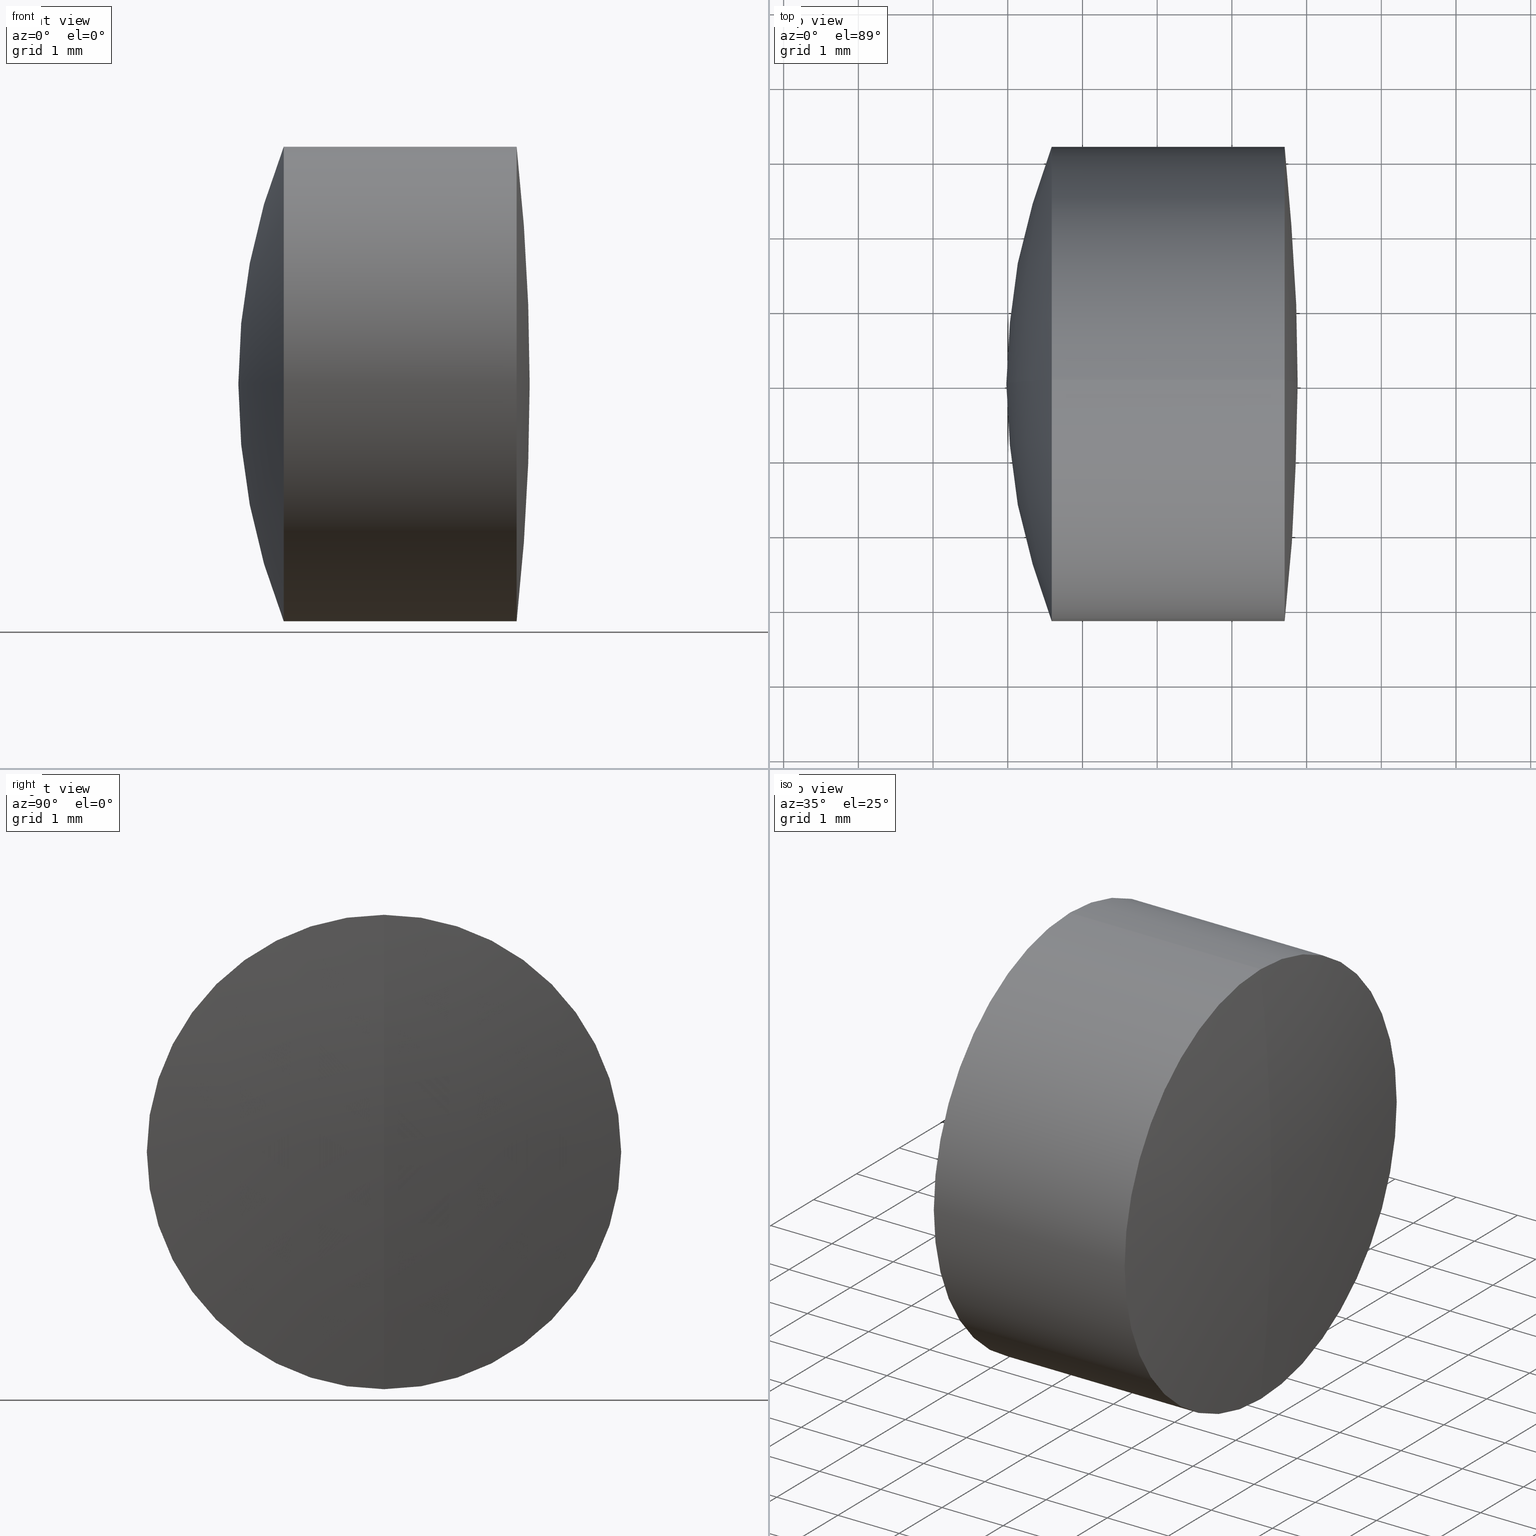
[diagram: canonical four-view strip — front | top / right | iso, engineering-drawing reading convention]
A machine part, canonical four-view strip (front | top / right | iso — engineering-drawing reading convention). The complete STEP part file that produces these views, byte-faithful:
ISO-10303-21;
HEADER;
FILE_DESCRIPTION (( 'STEP AP214' ),
    '1' );
FILE_NAME ('145104.STEP',
    '2019-05-28T08:43:44',
    ( 'user' ),
    ( '΢���й�' ),
    'SwSTEP 2.0',
    'SolidWorks 2016',
    '' );
FILE_SCHEMA (( 'AUTOMOTIVE_DESIGN' ));
ENDSEC;

DATA;
#1 = ORIENTED_EDGE ( 'NONE', *, *, #331, .F. ) ;
#2 = DIRECTION ( 'NONE',  ( 0.0000000000000000000, 1.000000000000000000, 0.0000000000000000000 ) ) ;
#3 =( GEOMETRIC_REPRESENTATION_CONTEXT ( 3 ) GLOBAL_UNCERTAINTY_ASSIGNED_CONTEXT ( ( #105 ) ) GLOBAL_UNIT_ASSIGNED_CONTEXT ( ( #121, #212, #255 ) ) REPRESENTATION_CONTEXT ( 'NONE', 'WORKASPACE' ) );
#4 = FACE_OUTER_BOUND ( 'NONE', #145, .T. ) ;
#5 = MECHANICAL_DESIGN_GEOMETRIC_PRESENTATION_REPRESENTATION (  '', ( #228 ), #266 ) ;
#6 = UNCERTAINTY_MEASURE_WITH_UNIT (LENGTH_MEASURE( 1.000000000000000100E-005 ), #227, 'distance_accuracy_value', 'NONE');
#7 = ADVANCED_FACE ( 'NONE', ( #214 ), #222, .T. ) ;
#8 = STYLED_ITEM ( 'NONE', ( #20 ), #69 ) ;
#9 = COLOUR_RGB ( '',1.000000000000000000, 1.000000000000000000, 1.000000000000000000 ) ;
#10 = SPHERICAL_SURFACE ( 'NONE', #163, 6.700000000000275500 ) ;
#11 = EDGE_CURVE ( 'NONE', #137, #195, #148, .T. ) ;
#12 =( NAMED_UNIT ( * ) PLANE_ANGLE_UNIT ( ) SI_UNIT ( $, .RADIAN. ) );
#13 = FILL_AREA_STYLE ('',( #152 ) ) ;
#14 = DIRECTION ( 'NONE',  ( -1.000000000000000000, -0.0000000000000000000, -0.0000000000000000000 ) ) ;
#15 = CARTESIAN_POINT ( 'NONE',  ( -0.5519199926577972300, 0.0000000000000000000, 0.0000000000000000000 ) ) ;
#16 = DIRECTION ( 'NONE',  ( -0.0000000000000000000, 1.000000000000000000, 1.224646799147353200E-016 ) ) ;
#17 = DIRECTION ( 'NONE',  ( -1.000000000000000000, -0.0000000000000000000, -0.0000000000000000000 ) ) ;
#18 = DIRECTION ( 'NONE',  ( 0.0000000000000000000, 1.000000000000000000, 0.0000000000000000000 ) ) ;
#19 = FACE_OUTER_BOUND ( 'NONE', #108, .T. ) ;
#20 = PRESENTATION_STYLE_ASSIGNMENT (( #251 ) ) ;
#21 = CARTESIAN_POINT ( 'NONE',  ( 261.6806597883319800, 3.888253587292846100E-016, -3.174999999999999800 ) ) ;
#22 = CARTESIAN_POINT ( 'NONE',  ( 124.5233095260452400, 0.0000000000000000000, 0.0000000000000000000 ) ) ;
#23 = DIRECTION ( 'NONE',  ( 0.0000000000000000000, 0.0000000000000000000, 1.000000000000000000 ) ) ;
#24 = CARTESIAN_POINT ( 'NONE',  ( 234.8807127546714100, 0.0000000000000000000, 0.0000000000000000000 ) ) ;
#25 = AXIS2_PLACEMENT_3D ( 'NONE', #310, #99, #23 ) ;
#26 = DIRECTION ( 'NONE',  ( -1.000000000000000000, -0.0000000000000000000, -0.0000000000000000000 ) ) ;
#27 = PRESENTATION_LAYER_ASSIGNMENT (  '', '', ( #8 ) ) ;
#28 = EDGE_LOOP ( 'NONE', ( #117, #61, #197, #187 ) ) ;
#29 = AXIS2_PLACEMENT_3D ( 'NONE', #344, #131, #314 ) ;
#30 = LINE ( 'NONE', #165, #113 ) ;
#31 = ADVANCED_FACE ( 'NONE', ( #4 ), #292, .T. ) ;
#32 = PRESENTATION_LAYER_ASSIGNMENT (  '', '', ( #228 ) ) ;
#33 = ORIENTED_EDGE ( 'NONE', *, *, #250, .T. ) ;
#34 = VERTEX_POINT ( 'NONE', #306 ) ;
#35 =( NAMED_UNIT ( * ) PLANE_ANGLE_UNIT ( ) SI_UNIT ( $, .RADIAN. ) );
#36 = FILL_AREA_STYLE_COLOUR ( '', #112 ) ;
#37 = DIRECTION ( 'NONE',  ( 0.0000000000000000000, -1.000000000000000000, 0.0000000000000000000 ) ) ;
#38 = DIRECTION ( 'NONE',  ( -0.0000000000000000000, -1.000000000000000000, -0.0000000000000000000 ) ) ;
#39 = EDGE_CURVE ( 'NONE', #120, #286, #77, .T. ) ;
#40 = MANIFOLD_SOLID_BREP ( '��ת3', #188 ) ;
#41 = SHAPE_DEFINITION_REPRESENTATION ( #340, #69 ) ;
#42 = DIRECTION ( 'NONE',  ( -0.0000000000000000000, 1.000000000000000000, 1.224646799147353200E-016 ) ) ;
#43 = ORIENTED_EDGE ( 'NONE', *, *, #11, .F. ) ;
#44 = MECHANICAL_DESIGN_GEOMETRIC_PRESENTATION_REPRESENTATION (  '', ( #8 ), #63 ) ;
#45 = DIRECTION ( 'NONE',  ( 0.0000000000000000000, 1.224646799147353200E-016, -1.000000000000000000 ) ) ;
#46 = VERTEX_POINT ( 'NONE', #253 ) ;
#47 = ORIENTED_EDGE ( 'NONE', *, *, #250, .F. ) ;
#48 = DIRECTION ( 'NONE',  ( -1.000000000000000000, -0.0000000000000000000, -0.0000000000000000000 ) ) ;
#49 = STYLED_ITEM ( 'NONE', ( #155 ), #40 ) ;
#50 = FACE_OUTER_BOUND ( 'NONE', #281, .T. ) ;
#51 = CARTESIAN_POINT ( 'NONE',  ( -0.5519199926577972300, 0.0000000000000000000, 0.0000000000000000000 ) ) ;
#52 = ORIENTED_EDGE ( 'NONE', *, *, #207, .T. ) ;
#53 = FACE_OUTER_BOUND ( 'NONE', #265, .T. ) ;
#54 = ORIENTED_EDGE ( 'NONE', *, *, #245, .T. ) ;
#55 = PRESENTATION_LAYER_ASSIGNMENT (  '', '', ( #49 ) ) ;
#56 = ORIENTED_EDGE ( 'NONE', *, *, #183, .T. ) ;
#57 = AXIS2_PLACEMENT_3D ( 'NONE', #110, #86, #319 ) ;
#58 = ORIENTED_EDGE ( 'NONE', *, *, #225, .F. ) ;
#59 = FACE_OUTER_BOUND ( 'NONE', #204, .T. ) ;
#60 = ADVANCED_FACE ( 'NONE', ( #19 ), #328, .T. ) ;
#61 = ORIENTED_EDGE ( 'NONE', *, *, #11, .T. ) ;
#62 = CIRCLE ( 'NONE', #29, 3.174999999999999800 ) ;
#63 =( GEOMETRIC_REPRESENTATION_CONTEXT ( 3 ) GLOBAL_UNCERTAINTY_ASSIGNED_CONTEXT ( ( #6 ) ) GLOBAL_UNIT_ASSIGNED_CONTEXT ( ( #227, #35, #196 ) ) REPRESENTATION_CONTEXT ( 'NONE', 'WORKASPACE' ) );
#64 = VERTEX_POINT ( 'NONE', #124 ) ;
#65 = EDGE_CURVE ( 'NONE', #342, #323, #263, .T. ) ;
#66 = DIRECTION ( 'NONE',  ( -0.0000000000000000000, 1.000000000000000000, 1.224646799147353200E-016 ) ) ;
#67 = CARTESIAN_POINT ( 'NONE',  ( 261.6806597883319800, 0.0000000000000000000, 0.0000000000000000000 ) ) ;
#68 = DIRECTION ( 'NONE',  ( -1.000000000000000000, -0.0000000000000000000, -0.0000000000000000000 ) ) ;
#69 = ADVANCED_BREP_SHAPE_REPRESENTATION ( '145104', ( #93, #40, #115 ), #289 ) ;
#70 = CARTESIAN_POINT ( 'NONE',  ( 268.5807127546710800, 0.0000000000000000000, 7.729108157225100800E-017 ) ) ;
#71 = CIRCLE ( 'NONE', #273, 6.700000000000275500 ) ;
#72 = CARTESIAN_POINT ( 'NONE',  ( 268.5807127546710800, 0.0000000000000000000, 7.729108157225100800E-017 ) ) ;
#73 = AXIS2_PLACEMENT_3D ( 'NONE', #268, #48, #240 ) ;
#74 = EDGE_LOOP ( 'NONE', ( #318, #161, #343 ) ) ;
#75 = DIRECTION ( 'NONE',  ( 0.0000000000000000000, 1.000000000000000000, 0.0000000000000000000 ) ) ;
#76 = CARTESIAN_POINT ( 'NONE',  ( -0.5519199926577972300, 0.0000000000000000000, 3.175000000000000700 ) ) ;
#77 = CIRCLE ( 'NONE', #201, 3.175000000000000700 ) ;
#78 = ORIENTED_EDGE ( 'NONE', *, *, #260, .F. ) ;
#79 = DIRECTION ( 'NONE',  ( -1.000000000000000000, -0.0000000000000000000, -0.0000000000000000000 ) ) ;
#80 = DIRECTION ( 'NONE',  ( -1.000000000000000000, -0.0000000000000000000, -0.0000000000000000000 ) ) ;
#81 = DIRECTION ( 'NONE',  ( 0.0000000000000000000, -1.000000000000000000, 0.0000000000000000000 ) ) ;
#82 = AXIS2_PLACEMENT_3D ( 'NONE', #235, #16, #269 ) ;
#83 = DIRECTION ( 'NONE',  ( 0.0000000000000000000, 0.0000000000000000000, 1.000000000000000000 ) ) ;
#84 = CIRCLE ( 'NONE', #82, 6.700000000000274600 ) ;
#85 = SURFACE_STYLE_FILL_AREA ( #13 ) ;
#86 = DIRECTION ( 'NONE',  ( -1.000000000000000000, -0.0000000000000000000, -0.0000000000000000000 ) ) ;
#87 = EDGE_LOOP ( 'NONE', ( #339, #329, #313 ) ) ;
#88 = AXIS2_PLACEMENT_3D ( 'NONE', #138, #2, #232 ) ;
#89 = ADVANCED_FACE ( 'NONE', ( #53 ), #194, .T. ) ;
#90 = SURFACE_STYLE_FILL_AREA ( #284 ) ;
#91 = SURFACE_SIDE_STYLE ('',( #90 ) ) ;
#92 = AXIS2_PLACEMENT_3D ( 'NONE', #158, #215, #45 ) ;
#93 = MANIFOLD_SOLID_BREP ( '��ת1', #157 ) ;
#94 = CARTESIAN_POINT ( 'NONE',  ( 255.7807127546711300, 0.0000000000000000000, 0.0000000000000000000 ) ) ;
#95 = FACE_OUTER_BOUND ( 'NONE', #226, .T. ) ;
#96 = DIRECTION ( 'NONE',  ( 0.0000000000000000000, 0.0000000000000000000, 1.000000000000000000 ) ) ;
#97 = AXIS2_PLACEMENT_3D ( 'NONE', #94, #285, #338 ) ;
#98 = CARTESIAN_POINT ( 'NONE',  ( 255.7807127546711300, 0.0000000000000000000, 0.0000000000000000000 ) ) ;
#99 = DIRECTION ( 'NONE',  ( 0.0000000000000000000, 1.000000000000000000, 0.0000000000000000000 ) ) ;
#100 = DIRECTION ( 'NONE',  ( 0.0000000000000000000, 0.0000000000000000000, 1.000000000000000000 ) ) ;
#101 = EDGE_CURVE ( 'NONE', #195, #46, #127, .T. ) ;
#102 = CARTESIAN_POINT ( 'NONE',  ( 261.6806597883319800, 0.0000000000000000000, 0.0000000000000000000 ) ) ;
#103 = CYLINDRICAL_SURFACE ( 'NONE', #278, 3.174999999999999800 ) ;
#104 = DIRECTION ( 'NONE',  ( 0.0000000000000000000, 0.0000000000000000000, -1.000000000000000000 ) ) ;
#105 = UNCERTAINTY_MEASURE_WITH_UNIT (LENGTH_MEASURE( 1.000000000000000100E-005 ), #121, 'distance_accuracy_value', 'NONE');
#106 = EDGE_CURVE ( 'NONE', #46, #64, #62, .T. ) ;
#107 = DIRECTION ( 'NONE',  ( 0.0000000000000000000, -1.000000000000000000, 0.0000000000000000000 ) ) ;
#108 = EDGE_LOOP ( 'NONE', ( #312, #267, #43 ) ) ;
#109 = ORIENTED_EDGE ( 'NONE', *, *, #39, .T. ) ;
#110 = CARTESIAN_POINT ( 'NONE',  ( 263.7063849064184100, 0.0000000000000000000, 0.0000000000000000000 ) ) ;
#111 = ADVANCED_FACE ( 'NONE', ( #95 ), #103, .T. ) ;
#112 = COLOUR_RGB ( '',1.000000000000000000, 1.000000000000000000, 1.000000000000000000 ) ;
#113 = VECTOR ( 'NONE', #26, 1000.000000000000000 ) ;
#114 = VERTEX_POINT ( 'NONE', #294 ) ;
#115 = AXIS2_PLACEMENT_3D ( 'NONE', #171, #330, #149 ) ;
#116 = APPLICATION_CONTEXT ( 'automotive_design' ) ;
#117 = ORIENTED_EDGE ( 'NONE', *, *, #322, .F. ) ;
#118 = AXIS2_PLACEMENT_3D ( 'NONE', #102, #126, #346 ) ;
#119 = APPLICATION_CONTEXT ( 'automotive_design' ) ;
#120 = VERTEX_POINT ( 'NONE', #239 ) ;
#121 =( LENGTH_UNIT ( ) NAMED_UNIT ( * ) SI_UNIT ( .MILLI., .METRE. ) );
#122 = CIRCLE ( 'NONE', #236, 8.600000000000001400 ) ;
#123 = AXIS2_PLACEMENT_3D ( 'NONE', #216, #159, #264 ) ;
#124 = CARTESIAN_POINT ( 'NONE',  ( 260.5882553728641800, 0.0000000000000000000, -3.174999999999998500 ) ) ;
#125 = ORIENTED_EDGE ( 'NONE', *, *, #154, .T. ) ;
#126 = DIRECTION ( 'NONE',  ( -1.000000000000000000, -0.0000000000000000000, -0.0000000000000000000 ) ) ;
#127 = LINE ( 'NONE', #218, #166 ) ;
#128 = CARTESIAN_POINT ( 'NONE',  ( 261.6806597883319800, 0.0000000000000000000, 0.0000000000000000000 ) ) ;
#129 = ORIENTED_EDGE ( 'NONE', *, *, #39, .F. ) ;
#130 = CARTESIAN_POINT ( 'NONE',  ( 124.5233095260452400, 0.0000000000000000000, 0.0000000000000000000 ) ) ;
#131 = DIRECTION ( 'NONE',  ( -1.000000000000000000, -0.0000000000000000000, -0.0000000000000000000 ) ) ;
#132 = ORIENTED_EDGE ( 'NONE', *, *, #65, .F. ) ;
#133 =( NAMED_UNIT ( * ) SI_UNIT ( $, .STERADIAN. ) SOLID_ANGLE_UNIT ( ) );
#134 = CARTESIAN_POINT ( 'NONE',  ( 255.7807127546711300, 0.0000000000000000000, 0.0000000000000000000 ) ) ;
#135 = VECTOR ( 'NONE', #178, 1000.000000000000000 ) ;
#136 = CARTESIAN_POINT ( 'NONE',  ( 263.8807127546714400, 0.0000000000000000000, 1.775737858763664800E-015 ) ) ;
#137 = VERTEX_POINT ( 'NONE', #21 ) ;
#138 = CARTESIAN_POINT ( 'NONE',  ( 234.8807127546714100, 0.0000000000000000000, 0.0000000000000000000 ) ) ;
#139 = PRESENTATION_STYLE_ASSIGNMENT (( #316 ) ) ;
#140 = PRODUCT_DEFINITION ( 'δ֪', '', #156, #185 ) ;
#141 = ORIENTED_EDGE ( 'NONE', *, *, #101, .F. ) ;
#142 = ORIENTED_EDGE ( 'NONE', *, *, #106, .F. ) ;
#143 = CIRCLE ( 'NONE', #146, 3.174999999999999800 ) ;
#144 = ADVANCED_FACE ( 'NONE', ( #308 ), #274, .T. ) ;
#145 = EDGE_LOOP ( 'NONE', ( #277, #125, #193 ) ) ;
#146 = AXIS2_PLACEMENT_3D ( 'NONE', #128, #290, #100 ) ;
#147 = CIRCLE ( 'NONE', #118, 3.175000000000000700 ) ;
#148 = CIRCLE ( 'NONE', #271, 3.174999999999999800 ) ;
#149 = DIRECTION ( 'NONE',  ( 1.000000000000000000, 0.0000000000000000000, 0.0000000000000000000 ) ) ;
#150 = APPLICATION_PROTOCOL_DEFINITION ( 'draft international standard', 'automotive_design', 1998, #119 ) ;
#151 = AXIS2_PLACEMENT_3D ( 'NONE', #130, #297, #83 ) ;
#152 = FILL_AREA_STYLE_COLOUR ( '', #9 ) ;
#153 = DIRECTION ( 'NONE',  ( -1.000000000000000000, -0.0000000000000000000, -0.0000000000000000000 ) ) ;
#154 = EDGE_CURVE ( 'NONE', #46, #217, #337, .T. ) ;
#155 = PRESENTATION_STYLE_ASSIGNMENT (( #332 ) ) ;
#156 = PRODUCT_DEFINITION_FORMATION_WITH_SPECIFIED_SOURCE ( '�κ�', '', #213, .NOT_KNOWN. ) ;
#157 = CLOSED_SHELL ( 'NONE', ( #89, #111, #31, #144, #191, #60 ) ) ;
#158 = CARTESIAN_POINT ( 'NONE',  ( 268.5807127546710800, 0.0000000000000000000, 7.729108157225100800E-017 ) ) ;
#159 = DIRECTION ( 'NONE',  ( -0.0000000000000000000, -1.000000000000000000, -0.0000000000000000000 ) ) ;
#160 =( LENGTH_UNIT ( ) NAMED_UNIT ( * ) SI_UNIT ( .MILLI., .METRE. ) );
#161 = ORIENTED_EDGE ( 'NONE', *, *, #106, .T. ) ;
#162 = DIRECTION ( 'NONE',  ( 0.0000000000000000000, 0.0000000000000000000, 1.000000000000000000 ) ) ;
#163 = AXIS2_PLACEMENT_3D ( 'NONE', #134, #287, #162 ) ;
#164 = EDGE_CURVE ( 'NONE', #261, #323, #241, .T. ) ;
#165 = CARTESIAN_POINT ( 'NONE',  ( -0.5519199926577972300, 3.888253587292847100E-016, -3.175000000000000700 ) ) ;
#166 = VECTOR ( 'NONE', #80, 1000.000000000000000 ) ;
#167 = UNCERTAINTY_MEASURE_WITH_UNIT (LENGTH_MEASURE( 1.000000000000000100E-005 ), #160, 'distance_accuracy_value', 'NONE');
#168 = EDGE_CURVE ( 'NONE', #34, #195, #223, .T. ) ;
#169 = FACE_OUTER_BOUND ( 'NONE', #272, .T. ) ;
#170 = PRODUCT_RELATED_PRODUCT_CATEGORY ( 'part', '', ( #213 ) ) ;
#171 = CARTESIAN_POINT ( 'NONE',  ( 0.0000000000000000000, 0.0000000000000000000, 0.0000000000000000000 ) ) ;
#172 =( NAMED_UNIT ( * ) SI_UNIT ( $, .STERADIAN. ) SOLID_ANGLE_UNIT ( ) );
#173 = SURFACE_SIDE_STYLE ('',( #85 ) ) ;
#174 = DIRECTION ( 'NONE',  ( 0.0000000000000000000, 0.0000000000000000000, 1.000000000000000000 ) ) ;
#175 = CARTESIAN_POINT ( 'NONE',  ( 255.7807127546711300, 0.0000000000000000000, 0.0000000000000000000 ) ) ;
#176 = DIRECTION ( 'NONE',  ( 0.0000000000000000000, 0.0000000000000000000, 1.000000000000000000 ) ) ;
#177 = AXIS2_PLACEMENT_3D ( 'NONE', #237, #42, #211 ) ;
#178 = DIRECTION ( 'NONE',  ( -1.000000000000000000, -0.0000000000000000000, -0.0000000000000000000 ) ) ;
#179 = ORIENTED_EDGE ( 'NONE', *, *, #65, .T. ) ;
#180 = DIRECTION ( 'NONE',  ( 0.0000000000000000000, 0.0000000000000000000, 1.000000000000000000 ) ) ;
#181 = SURFACE_SIDE_STYLE ('',( #210 ) ) ;
#182 = DIRECTION ( 'NONE',  ( 0.0000000000000000000, 0.0000000000000000000, 1.000000000000000000 ) ) ;
#183 = EDGE_CURVE ( 'NONE', #323, #342, #291, .T. ) ;
#184 = VECTOR ( 'NONE', #153, 1000.000000000000000 ) ;
#185 = PRODUCT_DEFINITION_CONTEXT ( 'detailed design', #116, 'design' ) ;
#186 = EDGE_LOOP ( 'NONE', ( #1, #243, #109 ) ) ;
#187 = ORIENTED_EDGE ( 'NONE', *, *, #296, .F. ) ;
#188 = CLOSED_SHELL ( 'NONE', ( #7, #224, #301, #246, #325, #280 ) ) ;
#189 = ORIENTED_EDGE ( 'NONE', *, *, #168, .F. ) ;
#190 = SPHERICAL_SURFACE ( 'NONE', #248, 6.700000000000275500 ) ;
#191 = ADVANCED_FACE ( 'NONE', ( #257 ), #303, .T. ) ;
#192 = AXIS2_PLACEMENT_3D ( 'NONE', #206, #17, #176 ) ;
#193 = ORIENTED_EDGE ( 'NONE', *, *, #304, .F. ) ;
#194 = SPHERICAL_SURFACE ( 'NONE', #25, 6.700000000000274600 ) ;
#195 = VERTEX_POINT ( 'NONE', #209 ) ;
#196 =( NAMED_UNIT ( * ) SI_UNIT ( $, .STERADIAN. ) SOLID_ANGLE_UNIT ( ) );
#197 = ORIENTED_EDGE ( 'NONE', *, *, #101, .T. ) ;
#198 =( LENGTH_UNIT ( ) NAMED_UNIT ( * ) SI_UNIT ( .MILLI., .METRE. ) );
#199 = DIRECTION ( 'NONE',  ( 0.0000000000000000000, 0.0000000000000000000, 1.000000000000000000 ) ) ;
#200 = DIRECTION ( 'NONE',  ( 0.0000000000000000000, 0.0000000000000000000, 1.000000000000000000 ) ) ;
#201 = AXIS2_PLACEMENT_3D ( 'NONE', #67, #230, #199 ) ;
#202 = CARTESIAN_POINT ( 'NONE',  ( 261.6806597883319800, 0.0000000000000000000, 0.0000000000000000000 ) ) ;
#203 = CARTESIAN_POINT ( 'NONE',  ( 124.5233095260452400, 3.888253587292846100E-016, -3.174999999999999800 ) ) ;
#204 = EDGE_LOOP ( 'NONE', ( #327, #276, #132 ) ) ;
#205 = LINE ( 'NONE', #76, #135 ) ;
#206 = CARTESIAN_POINT ( 'NONE',  ( 260.5882553728641800, 0.0000000000000000000, 0.0000000000000000000 ) ) ;
#207 = EDGE_CURVE ( 'NONE', #342, #286, #30, .T. ) ;
#208 = ORIENTED_EDGE ( 'NONE', *, *, #322, .T. ) ;
#209 = CARTESIAN_POINT ( 'NONE',  ( 261.6806597883319800, 0.0000000000000000000, 3.174999999999999800 ) ) ;
#210 = SURFACE_STYLE_FILL_AREA ( #345 ) ;
#211 = DIRECTION ( 'NONE',  ( 0.0000000000000000000, -1.224646799147353200E-016, 1.000000000000000000 ) ) ;
#212 =( NAMED_UNIT ( * ) PLANE_ANGLE_UNIT ( ) SI_UNIT ( $, .RADIAN. ) );
#213 = PRODUCT ( '145104', '145104', '', ( #305 ) ) ;
#214 = FACE_OUTER_BOUND ( 'NONE', #321, .T. ) ;
#215 = DIRECTION ( 'NONE',  ( 0.0000000000000000000, -1.000000000000000000, -1.224646799147353200E-016 ) ) ;
#216 = CARTESIAN_POINT ( 'NONE',  ( 268.5807127546710800, 0.0000000000000000000, 7.729108157225100800E-017 ) ) ;
#217 = VERTEX_POINT ( 'NONE', #242 ) ;
#218 = CARTESIAN_POINT ( 'NONE',  ( 124.5233095260452400, 0.0000000000000000000, 3.174999999999999800 ) ) ;
#219 = ORIENTED_EDGE ( 'NONE', *, *, #254, .T. ) ;
#220 = DIRECTION ( 'NONE',  ( -1.000000000000000000, -0.0000000000000000000, -0.0000000000000000000 ) ) ;
#221 = AXIS2_PLACEMENT_3D ( 'NONE', #262, #18, #311 ) ;
#222 = SPHERICAL_SURFACE ( 'NONE', #88, 29.00000000000004300 ) ;
#223 = CIRCLE ( 'NONE', #238, 6.700000000000274600 ) ;
#224 = ADVANCED_FACE ( 'NONE', ( #169 ), #309, .T. ) ;
#225 = EDGE_CURVE ( 'NONE', #286, #120, #147, .T. ) ;
#226 = EDGE_LOOP ( 'NONE', ( #33, #208, #142, #141 ) ) ;
#227 =( LENGTH_UNIT ( ) NAMED_UNIT ( * ) SI_UNIT ( .MILLI., .METRE. ) );
#228 = STYLED_ITEM ( 'NONE', ( #139 ), #93 ) ;
#229 = DIRECTION ( 'NONE',  ( 0.0000000000000000000, -1.224646799147353200E-016, 1.000000000000000000 ) ) ;
#230 = DIRECTION ( 'NONE',  ( -1.000000000000000000, -0.0000000000000000000, -0.0000000000000000000 ) ) ;
#231 = DIRECTION ( 'NONE',  ( 0.0000000000000000000, 0.0000000000000000000, -1.000000000000000000 ) ) ;
#232 = DIRECTION ( 'NONE',  ( 0.0000000000000000000, 0.0000000000000000000, 1.000000000000000000 ) ) ;
#233 = DIRECTION ( 'NONE',  ( 0.0000000000000000000, 1.000000000000000000, -0.0000000000000000000 ) ) ;
#234 = UNCERTAINTY_MEASURE_WITH_UNIT (LENGTH_MEASURE( 1.000000000000000100E-005 ), #198, 'distance_accuracy_value', 'NONE');
#235 = CARTESIAN_POINT ( 'NONE',  ( 255.7807127546711300, 0.0000000000000000000, 0.0000000000000000000 ) ) ;
#236 = AXIS2_PLACEMENT_3D ( 'NONE', #72, #233, #96 ) ;
#237 = CARTESIAN_POINT ( 'NONE',  ( 234.8807127546714100, 0.0000000000000000000, 0.0000000000000000000 ) ) ;
#238 = AXIS2_PLACEMENT_3D ( 'NONE', #275, #107, #299 ) ;
#239 = CARTESIAN_POINT ( 'NONE',  ( 261.6806597883319800, 0.0000000000000000000, 3.175000000000000700 ) ) ;
#240 = DIRECTION ( 'NONE',  ( 0.0000000000000000000, 0.0000000000000000000, 1.000000000000000000 ) ) ;
#241 = CIRCLE ( 'NONE', #320, 29.00000000000004300 ) ;
#242 = CARTESIAN_POINT ( 'NONE',  ( 259.9807127546711200, 0.0000000000000000000, -4.493070420611109600E-016 ) ) ;
#243 = ORIENTED_EDGE ( 'NONE', *, *, #315, .T. ) ;
#244 = AXIS2_PLACEMENT_3D ( 'NONE', #70, #38, #334 ) ;
#245 = EDGE_CURVE ( 'NONE', #34, #137, #84, .T. ) ;
#246 = ADVANCED_FACE ( 'NONE', ( #326 ), #10, .F. ) ;
#247 = CYLINDRICAL_SURFACE ( 'NONE', #317, 3.175000000000000700 ) ;
#248 = AXIS2_PLACEMENT_3D ( 'NONE', #98, #75, #336 ) ;
#249 = ORIENTED_EDGE ( 'NONE', *, *, #164, .F. ) ;
#250 = EDGE_CURVE ( 'NONE', #195, #137, #143, .T. ) ;
#251 = SURFACE_STYLE_USAGE ( .BOTH. , #91 ) ;
#252 = CARTESIAN_POINT ( 'NONE',  ( 255.7807127546711300, 0.0000000000000000000, 0.0000000000000000000 ) ) ;
#253 = CARTESIAN_POINT ( 'NONE',  ( 260.5882553728641800, -3.888253587292844600E-016, 3.174999999999998500 ) ) ;
#254 = EDGE_CURVE ( 'NONE', #261, #342, #347, .T. ) ;
#255 =( NAMED_UNIT ( * ) SI_UNIT ( $, .STERADIAN. ) SOLID_ANGLE_UNIT ( ) );
#256 = CARTESIAN_POINT ( 'NONE',  ( 263.7063849064184100, 0.0000000000000000000, 3.175000000000000700 ) ) ;
#257 = FACE_OUTER_BOUND ( 'NONE', #28, .T. ) ;
#258 = FILL_AREA_STYLE_COLOUR ( '', #341 ) ;
#259 = CIRCLE ( 'NONE', #302, 6.700000000000275500 ) ;
#260 = EDGE_CURVE ( 'NONE', #323, #120, #205, .T. ) ;
#261 = VERTEX_POINT ( 'NONE', #136 ) ;
#262 = CARTESIAN_POINT ( 'NONE',  ( 234.8807127546714100, 0.0000000000000000000, 0.0000000000000000000 ) ) ;
#263 = CIRCLE ( 'NONE', #73, 3.175000000000000700 ) ;
#264 = DIRECTION ( 'NONE',  ( 0.0000000000000000000, 0.0000000000000000000, -1.000000000000000000 ) ) ;
#265 = EDGE_LOOP ( 'NONE', ( #189, #54, #47 ) ) ;
#266 =( GEOMETRIC_REPRESENTATION_CONTEXT ( 3 ) GLOBAL_UNCERTAINTY_ASSIGNED_CONTEXT ( ( #167 ) ) GLOBAL_UNIT_ASSIGNED_CONTEXT ( ( #160, #295, #133 ) ) REPRESENTATION_CONTEXT ( 'NONE', 'WORKASPACE' ) );
#267 = ORIENTED_EDGE ( 'NONE', *, *, #168, .T. ) ;
#268 = CARTESIAN_POINT ( 'NONE',  ( 263.7063849064184100, 0.0000000000000000000, 0.0000000000000000000 ) ) ;
#269 = DIRECTION ( 'NONE',  ( 0.0000000000000000000, -1.224646799147353200E-016, 1.000000000000000000 ) ) ;
#270 = FACE_OUTER_BOUND ( 'NONE', #87, .T. ) ;
#271 = AXIS2_PLACEMENT_3D ( 'NONE', #202, #14, #174 ) ;
#272 = EDGE_LOOP ( 'NONE', ( #56, #52, #129, #78 ) ) ;
#273 = AXIS2_PLACEMENT_3D ( 'NONE', #175, #37, #231 ) ;
#274 = SPHERICAL_SURFACE ( 'NONE', #123, 8.600000000000001400 ) ;
#275 = CARTESIAN_POINT ( 'NONE',  ( 255.7807127546711300, 0.0000000000000000000, 0.0000000000000000000 ) ) ;
#276 = ORIENTED_EDGE ( 'NONE', *, *, #164, .T. ) ;
#277 = ORIENTED_EDGE ( 'NONE', *, *, #296, .T. ) ;
#278 = AXIS2_PLACEMENT_3D ( 'NONE', #22, #79, #180 ) ;
#279 = CIRCLE ( 'NONE', #192, 3.174999999999999800 ) ;
#280 = ADVANCED_FACE ( 'NONE', ( #59 ), #335, .T. ) ;
#281 = EDGE_LOOP ( 'NONE', ( #300, #179, #282, #58 ) ) ;
#282 = ORIENTED_EDGE ( 'NONE', *, *, #260, .T. ) ;
#283 = APPLICATION_PROTOCOL_DEFINITION ( 'draft international standard', 'automotive_design', 1998, #116 ) ;
#284 = FILL_AREA_STYLE ('',( #36 ) ) ;
#285 = DIRECTION ( 'NONE',  ( 0.0000000000000000000, 1.000000000000000000, 0.0000000000000000000 ) ) ;
#286 = VERTEX_POINT ( 'NONE', #288 ) ;
#287 = DIRECTION ( 'NONE',  ( 0.0000000000000000000, 1.000000000000000000, 0.0000000000000000000 ) ) ;
#288 = CARTESIAN_POINT ( 'NONE',  ( 261.6806597883319800, 3.888253587292847600E-016, -3.175000000000000700 ) ) ;
#289 =( GEOMETRIC_REPRESENTATION_CONTEXT ( 3 ) GLOBAL_UNCERTAINTY_ASSIGNED_CONTEXT ( ( #234 ) ) GLOBAL_UNIT_ASSIGNED_CONTEXT ( ( #198, #12, #172 ) ) REPRESENTATION_CONTEXT ( 'NONE', 'WORKASPACE' ) );
#290 = DIRECTION ( 'NONE',  ( -1.000000000000000000, -0.0000000000000000000, -0.0000000000000000000 ) ) ;
#291 = CIRCLE ( 'NONE', #57, 3.175000000000000700 ) ;
#292 = SPHERICAL_SURFACE ( 'NONE', #244, 8.600000000000001400 ) ;
#293 = AXIS2_PLACEMENT_3D ( 'NONE', #51, #220, #182 ) ;
#294 = CARTESIAN_POINT ( 'NONE',  ( 262.4807127546714000, 0.0000000000000000000, 4.102566777143801900E-016 ) ) ;
#295 =( NAMED_UNIT ( * ) PLANE_ANGLE_UNIT ( ) SI_UNIT ( $, .RADIAN. ) );
#296 = EDGE_CURVE ( 'NONE', #64, #46, #279, .T. ) ;
#297 = DIRECTION ( 'NONE',  ( -1.000000000000000000, -0.0000000000000000000, -0.0000000000000000000 ) ) ;
#298 = ORIENTED_EDGE ( 'NONE', *, *, #183, .F. ) ;
#299 = DIRECTION ( 'NONE',  ( 0.0000000000000000000, 0.0000000000000000000, -1.000000000000000000 ) ) ;
#300 = ORIENTED_EDGE ( 'NONE', *, *, #207, .F. ) ;
#301 = ADVANCED_FACE ( 'NONE', ( #270 ), #190, .F. ) ;
#302 = AXIS2_PLACEMENT_3D ( 'NONE', #252, #66, #229 ) ;
#303 = CYLINDRICAL_SURFACE ( 'NONE', #151, 3.174999999999999800 ) ;
#304 = EDGE_CURVE ( 'NONE', #64, #217, #122, .T. ) ;
#305 = PRODUCT_CONTEXT ( 'NONE', #119, 'mechanical' ) ;
#306 = CARTESIAN_POINT ( 'NONE',  ( 262.4807127546714000, 0.0000000000000000000, 4.102566777143801400E-016 ) ) ;
#307 = MECHANICAL_DESIGN_GEOMETRIC_PRESENTATION_REPRESENTATION (  '', ( #49 ), #3 ) ;
#308 = FACE_OUTER_BOUND ( 'NONE', #74, .T. ) ;
#309 = CYLINDRICAL_SURFACE ( 'NONE', #293, 3.175000000000000700 ) ;
#310 = CARTESIAN_POINT ( 'NONE',  ( 255.7807127546711300, 0.0000000000000000000, 0.0000000000000000000 ) ) ;
#311 = DIRECTION ( 'NONE',  ( 0.0000000000000000000, 0.0000000000000000000, 1.000000000000000000 ) ) ;
#312 = ORIENTED_EDGE ( 'NONE', *, *, #245, .F. ) ;
#313 = ORIENTED_EDGE ( 'NONE', *, *, #225, .T. ) ;
#314 = DIRECTION ( 'NONE',  ( 0.0000000000000000000, 0.0000000000000000000, 1.000000000000000000 ) ) ;
#315 = EDGE_CURVE ( 'NONE', #114, #120, #71, .T. ) ;
#316 = SURFACE_STYLE_USAGE ( .BOTH. , #181 ) ;
#317 = AXIS2_PLACEMENT_3D ( 'NONE', #15, #68, #200 ) ;
#318 = ORIENTED_EDGE ( 'NONE', *, *, #154, .F. ) ;
#319 = DIRECTION ( 'NONE',  ( 0.0000000000000000000, 0.0000000000000000000, 1.000000000000000000 ) ) ;
#320 = AXIS2_PLACEMENT_3D ( 'NONE', #24, #81, #104 ) ;
#321 = EDGE_LOOP ( 'NONE', ( #249, #219, #298 ) ) ;
#322 = EDGE_CURVE ( 'NONE', #137, #64, #324, .T. ) ;
#323 = VERTEX_POINT ( 'NONE', #256 ) ;
#324 = LINE ( 'NONE', #203, #184 ) ;
#325 = ADVANCED_FACE ( 'NONE', ( #50 ), #247, .T. ) ;
#326 = FACE_OUTER_BOUND ( 'NONE', #186, .T. ) ;
#327 = ORIENTED_EDGE ( 'NONE', *, *, #254, .F. ) ;
#328 = SPHERICAL_SURFACE ( 'NONE', #97, 6.700000000000274600 ) ;
#329 = ORIENTED_EDGE ( 'NONE', *, *, #331, .T. ) ;
#330 = DIRECTION ( 'NONE',  ( 0.0000000000000000000, 0.0000000000000000000, 1.000000000000000000 ) ) ;
#331 = EDGE_CURVE ( 'NONE', #114, #286, #259, .T. ) ;
#332 = SURFACE_STYLE_USAGE ( .BOTH. , #173 ) ;
#333 = CARTESIAN_POINT ( 'NONE',  ( 263.7063849064184100, 3.888253587292847100E-016, -3.175000000000000700 ) ) ;
#334 = DIRECTION ( 'NONE',  ( 0.0000000000000000000, 0.0000000000000000000, -1.000000000000000000 ) ) ;
#335 = SPHERICAL_SURFACE ( 'NONE', #221, 29.00000000000004300 ) ;
#336 = DIRECTION ( 'NONE',  ( 0.0000000000000000000, 0.0000000000000000000, 1.000000000000000000 ) ) ;
#337 = CIRCLE ( 'NONE', #92, 8.600000000000001400 ) ;
#338 = DIRECTION ( 'NONE',  ( 0.0000000000000000000, 0.0000000000000000000, 1.000000000000000000 ) ) ;
#339 = ORIENTED_EDGE ( 'NONE', *, *, #315, .F. ) ;
#340 = PRODUCT_DEFINITION_SHAPE ( 'NONE', 'NONE',  #140 ) ;
#341 = COLOUR_RGB ( '',1.000000000000000000, 1.000000000000000000, 1.000000000000000000 ) ;
#342 = VERTEX_POINT ( 'NONE', #333 ) ;
#343 = ORIENTED_EDGE ( 'NONE', *, *, #304, .T. ) ;
#344 = CARTESIAN_POINT ( 'NONE',  ( 260.5882553728641800, 0.0000000000000000000, 0.0000000000000000000 ) ) ;
#345 = FILL_AREA_STYLE ('',( #258 ) ) ;
#346 = DIRECTION ( 'NONE',  ( 0.0000000000000000000, 0.0000000000000000000, 1.000000000000000000 ) ) ;
#347 = CIRCLE ( 'NONE', #177, 29.00000000000004300 ) ;
ENDSEC;
END-ISO-10303-21;
